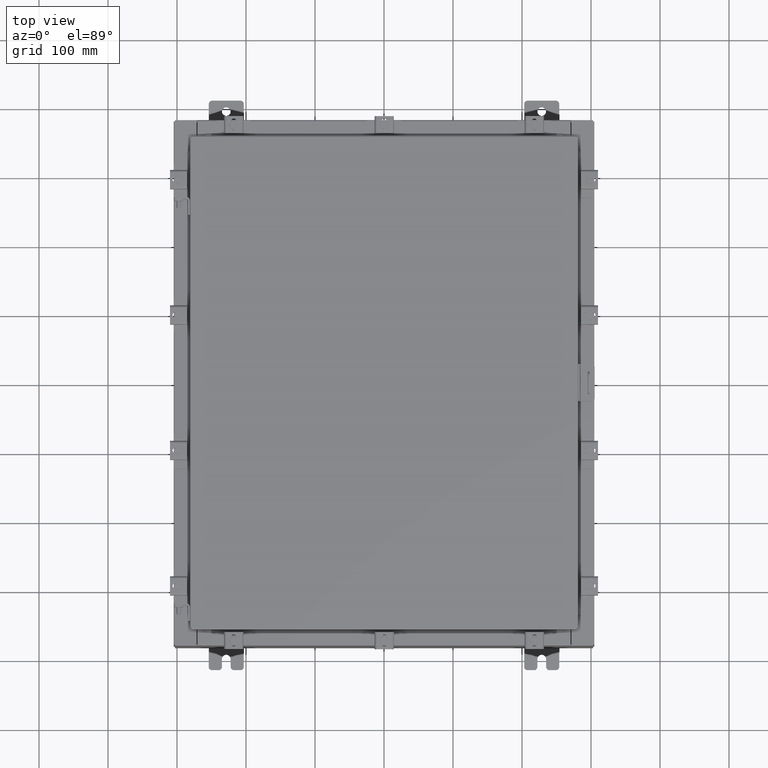
[diagram: clean part render]
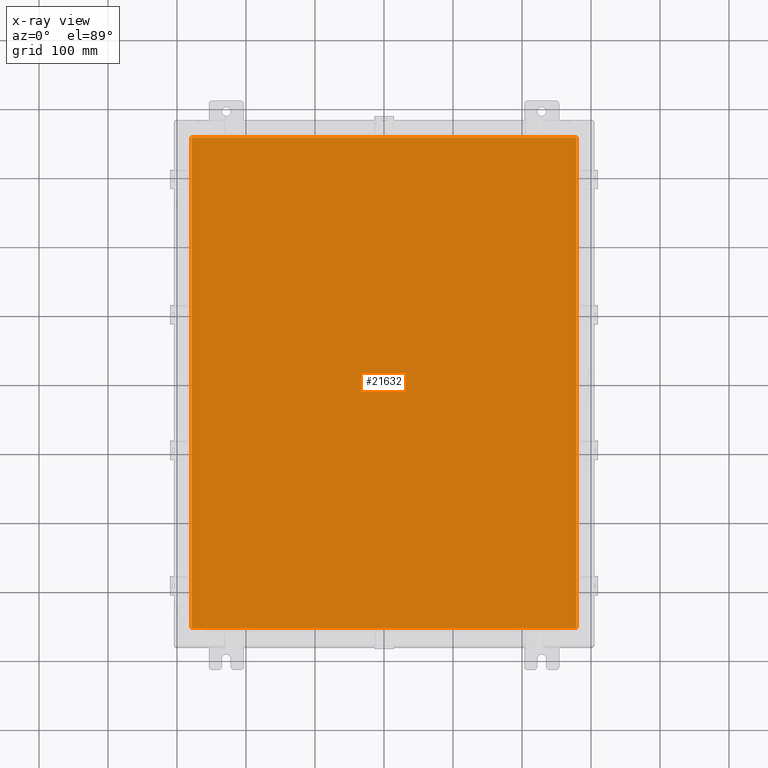
[diagram: x-ray — body ghosted, one internal face saturated and labeled with its STEP entity id]
A machine part, top view, then the same camera in x-ray: the body is ghosted and one INTERNAL B-rep face — a face not visible from any outside direction — is saturated and labeled: STEP entity #21632.
In plain terms, the highlighted planar face has unit normal (0, 0, -1).
Its self-contained STEP definition (entity closure, byte-faithful):
#391 = LINE ( 'NONE', #17805, #5689 ) ;
#1213 = ORIENTED_EDGE ( 'NONE', *, *, #12833, .F. ) ;
#1400 = VERTEX_POINT ( 'NONE', #19315 ) ;
#1418 = ORIENTED_EDGE ( 'NONE', *, *, #3799, .F. ) ;
#3799 = EDGE_CURVE ( 'NONE', #19083, #1400, #391, .T. ) ;
#4648 = PLANE ( 'NONE',  #19503 ) ;
#4910 = VECTOR ( 'NONE', #22071, 39.37007874015748100 ) ;
#5000 = DIRECTION ( 'NONE',  ( 1.000000000000000000, -0.0000000000000000000, -0.0000000000000000000 ) ) ;
#5140 = EDGE_LOOP ( 'NONE', ( #1418, #21380, #18046, #1213 ) ) ;
#5161 = CARTESIAN_POINT ( 'NONE',  ( 10.99030000000000000, -14.00629999999999800, -0.07470000000000000300 ) ) ;
#5689 = VECTOR ( 'NONE', #7097, 39.37007874015748100 ) ;
#6048 = CARTESIAN_POINT ( 'NONE',  ( -10.99030000000000000, 14.00630000000000100, -0.07470000000000019700 ) ) ;
#6383 = EDGE_CURVE ( 'NONE', #10556, #19083, #8509, .T. ) ;
#6464 = DIRECTION ( 'NONE',  ( 0.0000000000000000000, 0.0000000000000000000, -1.000000000000000000 ) ) ;
#7097 = DIRECTION ( 'NONE',  ( 0.0000000000000000000, 1.000000000000000000, 0.0000000000000000000 ) ) ;
#8193 = CARTESIAN_POINT ( 'NONE',  ( 0.0000000000000000000, 0.0000000000000000000, -0.07470000000000000300 ) ) ;
#8509 = LINE ( 'NONE', #17538, #9062 ) ;
#9062 = VECTOR ( 'NONE', #5000, 39.37007874015748100 ) ;
#9658 = LINE ( 'NONE', #20295, #4910 ) ;
#10350 = CARTESIAN_POINT ( 'NONE',  ( -10.99030000000000000, 14.00629999999999800, -0.07470000000000000300 ) ) ;
#10556 = VERTEX_POINT ( 'NONE', #16167 ) ;
#11657 = VECTOR ( 'NONE', #16753, 39.37007874015748100 ) ;
#12833 = EDGE_CURVE ( 'NONE', #1400, #20021, #9658, .T. ) ;
#13346 = FACE_OUTER_BOUND ( 'NONE', #5140, .T. ) ;
#16167 = CARTESIAN_POINT ( 'NONE',  ( -10.99030000000000000, -14.00629999999999600, -0.07470000000000000300 ) ) ;
#16458 = LINE ( 'NONE', #6048, #11657 ) ;
#16753 = DIRECTION ( 'NONE',  ( 0.0000000000000000000, -1.000000000000000000, 0.0000000000000000000 ) ) ;
#17538 = CARTESIAN_POINT ( 'NONE',  ( -10.99029999999999600, -14.00629999999999800, -0.07470000000000019700 ) ) ;
#17805 = CARTESIAN_POINT ( 'NONE',  ( 10.99030000000000000, -14.00629999999999800, -0.07470000000000019700 ) ) ;
#18046 = ORIENTED_EDGE ( 'NONE', *, *, #22224, .F. ) ;
#18970 = DIRECTION ( 'NONE',  ( -1.000000000000000000, 0.0000000000000000000, -0.0000000000000000000 ) ) ;
#19083 = VERTEX_POINT ( 'NONE', #5161 ) ;
#19315 = CARTESIAN_POINT ( 'NONE',  ( 10.99030000000000000, 14.00629999999999800, -0.07470000000000000300 ) ) ;
#19503 = AXIS2_PLACEMENT_3D ( 'NONE', #8193, #6464, #18970 ) ;
#20021 = VERTEX_POINT ( 'NONE', #10350 ) ;
#20295 = CARTESIAN_POINT ( 'NONE',  ( 10.99030000000000000, 14.00629999999999800, -0.07470000000000019700 ) ) ;
#21380 = ORIENTED_EDGE ( 'NONE', *, *, #6383, .F. ) ;
#21632 = ADVANCED_FACE ( 'NONE', ( #13346 ), #4648, .T. ) ;
#22071 = DIRECTION ( 'NONE',  ( -1.000000000000000000, -0.0000000000000000000, -0.0000000000000000000 ) ) ;
#22224 = EDGE_CURVE ( 'NONE', #20021, #10556, #16458, .T. ) ;